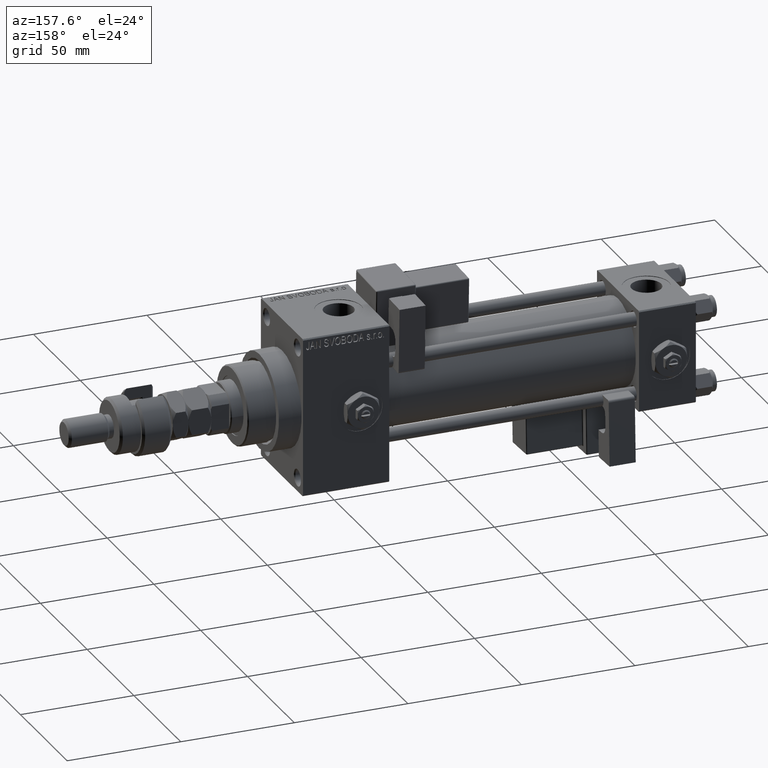
[diagram: clean part render]
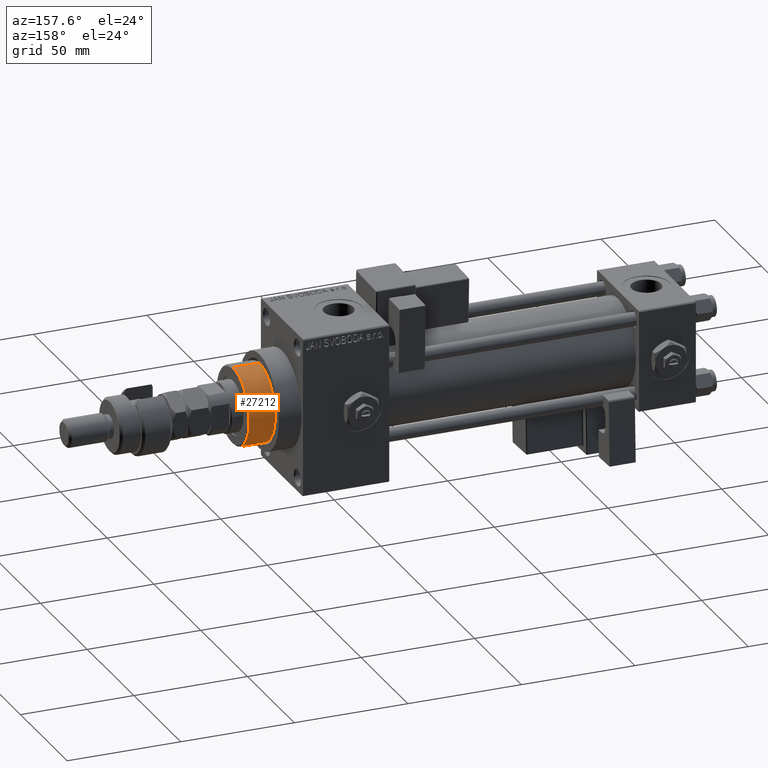
[diagram: same view with one face highlighted and labeled with its STEP entity id]
A machine part, auxiliary view. The second image highlights one B-rep face of the part: STEP entity #27212.
In plain terms, the highlighted cylindrical surface (partial cylindrical patch) has radius 17 mm, axis along (-1, 0, 0).
Its self-contained STEP definition (entity closure, byte-faithful):
#2482 = FACE_OUTER_BOUND ( 'NONE', #31296, .T. ) ;
#2687 = ORIENTED_EDGE ( 'NONE', *, *, #45107, .F. ) ;
#2808 = DIRECTION ( 'NONE',  ( -0.000000000000000000, -0.000000000000000000, -1.000000000000000000 ) ) ;
#3055 = VERTEX_POINT ( 'NONE', #36471 ) ;
#3204 = AXIS2_PLACEMENT_3D ( 'NONE', #19779, #18688, #35406 ) ;
#4121 = EDGE_CURVE ( 'NONE', #48150, #37454, #36570, .T. ) ;
#4644 = DIRECTION ( 'NONE',  ( 1.000000000000000000, 0.000000000000000000, 0.000000000000000000 ) ) ;
#6316 = CYLINDRICAL_SURFACE ( 'NONE', #3204, 17.00000000000000000 ) ;
#7461 = CARTESIAN_POINT ( 'NONE',  ( 17.00000000000000000, 2.081899558550500280E-15, 43.25999999999999801 ) ) ;
#7853 = ORIENTED_EDGE ( 'NONE', *, *, #37777, .T. ) ;
#8680 = CARTESIAN_POINT ( 'NONE',  ( 17.00000000000000000, 2.081899558550500280E-15, 54.76000000000001222 ) ) ;
#9606 = AXIS2_PLACEMENT_3D ( 'NONE', #40890, #12341, #49942 ) ;
#11303 = CARTESIAN_POINT ( 'NONE',  ( -17.00000000000000000, 0.000000000000000000, 43.25999999999999801 ) ) ;
#12341 = DIRECTION ( 'NONE',  ( 0.000000000000000000, 0.000000000000000000, -1.000000000000000000 ) ) ;
#12909 = AXIS2_PLACEMENT_3D ( 'NONE', #50489, #46396, #4644 ) ;
#16198 = ORIENTED_EDGE ( 'NONE', *, *, #52010, .T. ) ;
#17371 = VERTEX_POINT ( 'NONE', #8680 ) ;
#18688 = DIRECTION ( 'NONE',  ( -0.000000000000000000, -0.000000000000000000, -1.000000000000000000 ) ) ;
#19779 = CARTESIAN_POINT ( 'NONE',  ( 0.000000000000000000, 0.000000000000000000, 55.26000000000000512 ) ) ;
#20632 = ORIENTED_EDGE ( 'NONE', *, *, #4121, .T. ) ;
#22682 = DIRECTION ( 'NONE',  ( -0.000000000000000000, -0.000000000000000000, -1.000000000000000000 ) ) ;
#23499 = CARTESIAN_POINT ( 'NONE',  ( 17.00000000000000000, 2.081899558550500280E-15, 55.26000000000000512 ) ) ;
#24175 = VECTOR ( 'NONE', #2808, 1000.000000000000000 ) ;
#25619 = VECTOR ( 'NONE', #22682, 1000.000000000000000 ) ;
#27212 = ADVANCED_FACE ( 'NONE', ( #2482 ), #6316, .T. ) ;
#29787 = CIRCLE ( 'NONE', #9606, 17.00000000000000000 ) ;
#31296 = EDGE_LOOP ( 'NONE', ( #2687, #7853, #16198, #20632 ) ) ;
#31886 = LINE ( 'NONE', #48113, #24175 ) ;
#35406 = DIRECTION ( 'NONE',  ( -1.000000000000000000, 0.000000000000000000, 0.000000000000000000 ) ) ;
#36471 = CARTESIAN_POINT ( 'NONE',  ( -17.00000000000000000, 0.000000000000000000, 54.76000000000001222 ) ) ;
#36570 = CIRCLE ( 'NONE', #12909, 17.00000000000000000 ) ;
#37454 = VERTEX_POINT ( 'NONE', #7461 ) ;
#37777 = EDGE_CURVE ( 'NONE', #17371, #3055, #29787, .T. ) ;
#40890 = CARTESIAN_POINT ( 'NONE',  ( 0.000000000000000000, 0.000000000000000000, 54.76000000000001222 ) ) ;
#43814 = LINE ( 'NONE', #23499, #25619 ) ;
#45107 = EDGE_CURVE ( 'NONE', #17371, #37454, #43814, .T. ) ;
#46396 = DIRECTION ( 'NONE',  ( 0.000000000000000000, 0.000000000000000000, 1.000000000000000000 ) ) ;
#48113 = CARTESIAN_POINT ( 'NONE',  ( -17.00000000000000000, 0.000000000000000000, 55.26000000000000512 ) ) ;
#48150 = VERTEX_POINT ( 'NONE', #11303 ) ;
#49942 = DIRECTION ( 'NONE',  ( 1.000000000000000000, 0.000000000000000000, 0.000000000000000000 ) ) ;
#50489 = CARTESIAN_POINT ( 'NONE',  ( 0.000000000000000000, 0.000000000000000000, 43.25999999999999801 ) ) ;
#52010 = EDGE_CURVE ( 'NONE', #3055, #48150, #31886, .T. ) ;